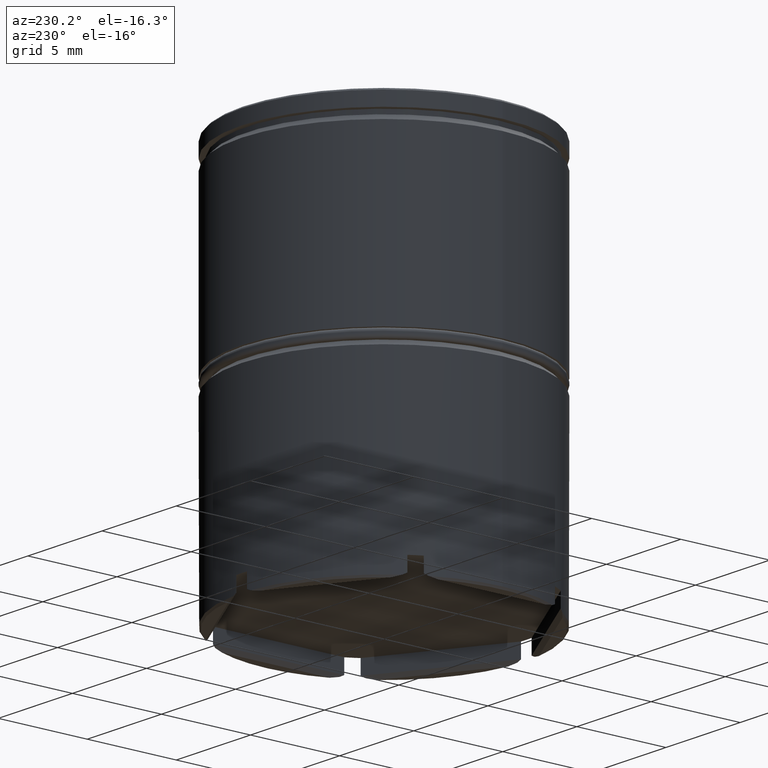
[diagram: clean part render]
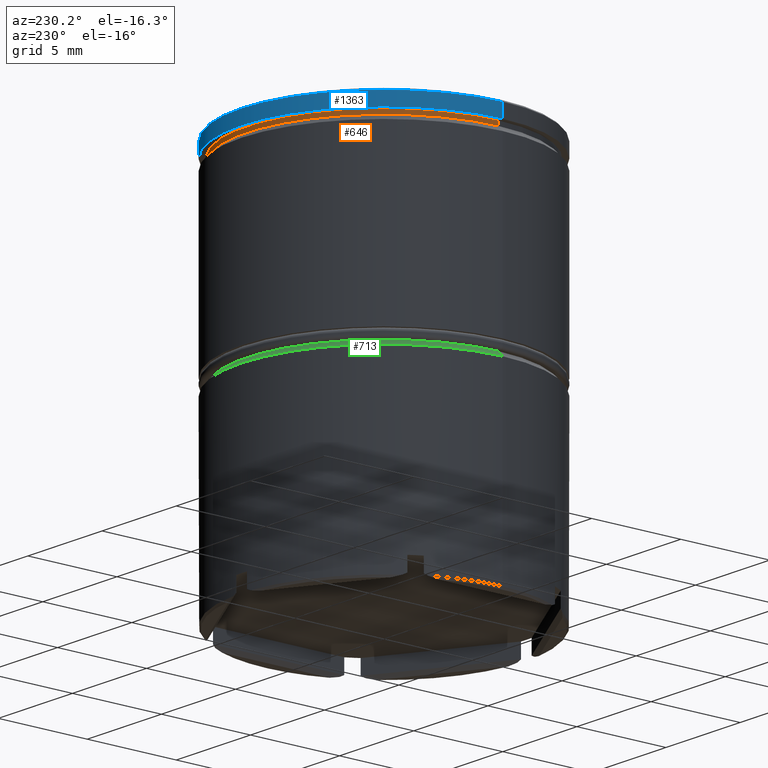
[diagram: same view with three faces highlighted in distinct colors, each labeled with its STEP entity id]
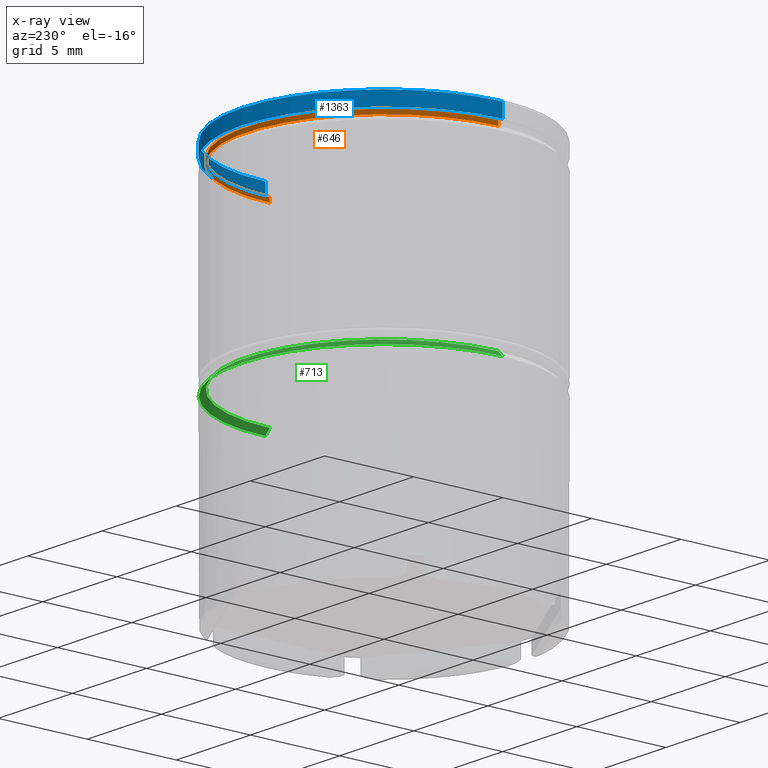
[diagram: x-ray of the same camera — body ghosted, the three highlighted faces saturated]
A machine part, auxiliary view with three faces highlighted in distinct colors.
The next image is the same camera in x-ray (body ghosted, the three faces saturated) — at least one of them is partly hidden behind the body in this view.
Their STEP definitions:

[orange] entity #646 — the highlighted cylindrical surface (partial cylindrical patch) has radius 7.7 mm, axis along (-0, -0, 1).
#66 = CARTESIAN_POINT ( 'NONE',  ( 7.700000000000000178, 0.000000000000000000, 0.000000000000000000 ) ) ;
#85 = LINE ( 'NONE', #66, #102 ) ;
#102 = VECTOR ( 'NONE', #944, 1000.000000000000000 ) ;
#116 = VERTEX_POINT ( 'NONE', #823 ) ;
#260 = VERTEX_POINT ( 'NONE', #353 ) ;
#263 = EDGE_CURVE ( 'NONE', #260, #116, #85, .T. ) ;
#274 = EDGE_CURVE ( 'NONE', #260, #1408, #1022, .T. ) ;
#297 = FACE_OUTER_BOUND ( 'NONE', #1014, .T. ) ;
#313 = DIRECTION ( 'NONE',  ( -0.000000000000000000, -0.000000000000000000, 1.000000000000000000 ) ) ;
#353 = CARTESIAN_POINT ( 'NONE',  ( 7.700000000000000178, 0.000000000000000000, -1.125000000000000222 ) ) ;
#407 = AXIS2_PLACEMENT_3D ( 'NONE', #690, #1199, #564 ) ;
#433 = CARTESIAN_POINT ( 'NONE',  ( 0.000000000000000000, 0.000000000000000000, 0.000000000000000000 ) ) ;
#469 = ORIENTED_EDGE ( 'NONE', *, *, #626, .T. ) ;
#492 = ORIENTED_EDGE ( 'NONE', *, *, #263, .F. ) ;
#564 = DIRECTION ( 'NONE',  ( 1.000000000000000000, 0.000000000000000000, 0.000000000000000000 ) ) ;
#626 = EDGE_CURVE ( 'NONE', #1408, #800, #1081, .T. ) ;
#644 = AXIS2_PLACEMENT_3D ( 'NONE', #855, #962, #1324 ) ;
#646 = ADVANCED_FACE ( 'NONE', ( #297 ), #804, .T. ) ;
#685 = DIRECTION ( 'NONE',  ( -0.000000000000000000, -0.000000000000000000, 1.000000000000000000 ) ) ;
#687 = ORIENTED_EDGE ( 'NONE', *, *, #1032, .F. ) ;
#690 = CARTESIAN_POINT ( 'NONE',  ( 0.000000000000000000, 0.000000000000000000, -0.8749999999999998890 ) ) ;
#731 = CIRCLE ( 'NONE', #407, 7.700000000000000178 ) ;
#800 = VERTEX_POINT ( 'NONE', #1266 ) ;
#804 = CYLINDRICAL_SURFACE ( 'NONE', #838, 7.700000000000000178 ) ;
#823 = CARTESIAN_POINT ( 'NONE',  ( 7.700000000000000178, 0.000000000000000000, -0.8749999999999998890 ) ) ;
#824 = CARTESIAN_POINT ( 'NONE',  ( -7.700000000000000178, 9.429780353434619030E-16, -1.125000000000000222 ) ) ;
#838 = AXIS2_PLACEMENT_3D ( 'NONE', #433, #313, #1308 ) ;
#839 = ORIENTED_EDGE ( 'NONE', *, *, #274, .T. ) ;
#855 = CARTESIAN_POINT ( 'NONE',  ( 0.000000000000000000, 0.000000000000000000, -1.125000000000000222 ) ) ;
#944 = DIRECTION ( 'NONE',  ( -0.000000000000000000, -0.000000000000000000, 1.000000000000000000 ) ) ;
#962 = DIRECTION ( 'NONE',  ( -0.000000000000000000, -0.000000000000000000, 1.000000000000000000 ) ) ;
#1014 = EDGE_LOOP ( 'NONE', ( #839, #469, #687, #492 ) ) ;
#1022 = CIRCLE ( 'NONE', #644, 7.700000000000000178 ) ;
#1032 = EDGE_CURVE ( 'NONE', #116, #800, #731, .T. ) ;
#1081 = LINE ( 'NONE', #1176, #1237 ) ;
#1176 = CARTESIAN_POINT ( 'NONE',  ( -7.700000000000000178, 9.429780353434619030E-16, 0.000000000000000000 ) ) ;
#1199 = DIRECTION ( 'NONE',  ( -0.000000000000000000, -0.000000000000000000, 1.000000000000000000 ) ) ;
#1237 = VECTOR ( 'NONE', #685, 1000.000000000000000 ) ;
#1266 = CARTESIAN_POINT ( 'NONE',  ( -7.700000000000000178, 9.429780353434619030E-16, -0.8749999999999998890 ) ) ;
#1308 = DIRECTION ( 'NONE',  ( 1.000000000000000000, 0.000000000000000000, 0.000000000000000000 ) ) ;
#1324 = DIRECTION ( 'NONE',  ( 1.000000000000000000, 0.000000000000000000, 0.000000000000000000 ) ) ;
#1408 = VERTEX_POINT ( 'NONE', #824 ) ;

[blue] entity #1363 — the highlighted cylindrical surface (partial cylindrical patch) has radius 8 mm, axis along (-0, -0, 1).
#42 = DIRECTION ( 'NONE',  ( 0.000000000000000000, 0.000000000000000000, -1.000000000000000000 ) ) ;
#44 = CARTESIAN_POINT ( 'NONE',  ( -8.000000000000000000, 9.797174393178825657E-16, 0.000000000000000000 ) ) ;
#129 = ORIENTED_EDGE ( 'NONE', *, *, #1345, .T. ) ;
#293 = DIRECTION ( 'NONE',  ( 1.000000000000000000, 0.000000000000000000, 0.000000000000000000 ) ) ;
#327 = CARTESIAN_POINT ( 'NONE',  ( -8.000000000000000000, 9.797174393178825657E-16, -0.8749999999999998890 ) ) ;
#438 = CYLINDRICAL_SURFACE ( 'NONE', #758, 8.000000000000000000 ) ;
#442 = CARTESIAN_POINT ( 'NONE',  ( 8.000000000000000000, 0.000000000000000000, 0.000000000000000000 ) ) ;
#459 = ORIENTED_EDGE ( 'NONE', *, *, #907, .T. ) ;
#514 = VECTOR ( 'NONE', #945, 1000.000000000000000 ) ;
#527 = CARTESIAN_POINT ( 'NONE',  ( 0.000000000000000000, 0.000000000000000000, -0.09999999999999592548 ) ) ;
#535 = LINE ( 'NONE', #44, #514 ) ;
#540 = VECTOR ( 'NONE', #955, 1000.000000000000000 ) ;
#543 = AXIS2_PLACEMENT_3D ( 'NONE', #527, #42, #1058 ) ;
#554 = VERTEX_POINT ( 'NONE', #693 ) ;
#556 = CARTESIAN_POINT ( 'NONE',  ( 0.000000000000000000, 0.000000000000000000, -0.8749999999999998890 ) ) ;
#628 = EDGE_LOOP ( 'NONE', ( #665, #459, #129, #1307 ) ) ;
#665 = ORIENTED_EDGE ( 'NONE', *, *, #930, .T. ) ;
#681 = VERTEX_POINT ( 'NONE', #327 ) ;
#684 = DIRECTION ( 'NONE',  ( 1.000000000000000000, 0.000000000000000000, 0.000000000000000000 ) ) ;
#693 = CARTESIAN_POINT ( 'NONE',  ( 8.000000000000000000, 0.000000000000000000, -0.09999999999999592548 ) ) ;
#758 = AXIS2_PLACEMENT_3D ( 'NONE', #935, #1436, #293 ) ;
#801 = CARTESIAN_POINT ( 'NONE',  ( -8.000000000000000000, 9.797174393178825657E-16, -0.09999999999999592548 ) ) ;
#907 = EDGE_CURVE ( 'NONE', #681, #971, #535, .T. ) ;
#930 = EDGE_CURVE ( 'NONE', #1442, #681, #1316, .T. ) ;
#935 = CARTESIAN_POINT ( 'NONE',  ( 0.000000000000000000, 0.000000000000000000, 0.000000000000000000 ) ) ;
#945 = DIRECTION ( 'NONE',  ( -0.000000000000000000, -0.000000000000000000, 1.000000000000000000 ) ) ;
#955 = DIRECTION ( 'NONE',  ( -0.000000000000000000, -0.000000000000000000, 1.000000000000000000 ) ) ;
#971 = VERTEX_POINT ( 'NONE', #801 ) ;
#1026 = AXIS2_PLACEMENT_3D ( 'NONE', #556, #1456, #684 ) ;
#1039 = EDGE_CURVE ( 'NONE', #1442, #554, #1584, .T. ) ;
#1058 = DIRECTION ( 'NONE',  ( 1.000000000000000000, 0.000000000000000000, 0.000000000000000000 ) ) ;
#1212 = CIRCLE ( 'NONE', #543, 8.000000000000000000 ) ;
#1305 = FACE_OUTER_BOUND ( 'NONE', #628, .T. ) ;
#1307 = ORIENTED_EDGE ( 'NONE', *, *, #1039, .F. ) ;
#1316 = CIRCLE ( 'NONE', #1026, 8.000000000000000000 ) ;
#1345 = EDGE_CURVE ( 'NONE', #971, #554, #1212, .T. ) ;
#1363 = ADVANCED_FACE ( 'NONE', ( #1305 ), #438, .T. ) ;
#1420 = CARTESIAN_POINT ( 'NONE',  ( 8.000000000000000000, 0.000000000000000000, -0.8749999999999998890 ) ) ;
#1436 = DIRECTION ( 'NONE',  ( -0.000000000000000000, -0.000000000000000000, 1.000000000000000000 ) ) ;
#1442 = VERTEX_POINT ( 'NONE', #1420 ) ;
#1456 = DIRECTION ( 'NONE',  ( -0.000000000000000000, -0.000000000000000000, 1.000000000000000000 ) ) ;
#1584 = LINE ( 'NONE', #442, #540 ) ;

[green] entity #713 — the highlighted conical surface has half-angle 45 deg.
#18 = EDGE_LOOP ( 'NONE', ( #523, #377, #1228, #1187 ) ) ;
#81 = FACE_OUTER_BOUND ( 'NONE', #18, .T. ) ;
#94 = CARTESIAN_POINT ( 'NONE',  ( -7.700000000000000178, 9.429780353434619030E-16, -11.25000000000000000 ) ) ;
#104 = VECTOR ( 'NONE', #530, 1000.000000000000000 ) ;
#172 = CARTESIAN_POINT ( 'NONE',  ( 7.700000000000001954, 9.429780353434622974E-16, -11.25000000000000000 ) ) ;
#184 = EDGE_CURVE ( 'NONE', #1116, #423, #695, .T. ) ;
#279 = CIRCLE ( 'NONE', #1259, 8.000000000000000000 ) ;
#377 = ORIENTED_EDGE ( 'NONE', *, *, #566, .T. ) ;
#386 = CARTESIAN_POINT ( 'NONE',  ( 0.000000000000000000, 0.000000000000000000, -11.54999999999999893 ) ) ;
#417 = LINE ( 'NONE', #172, #104 ) ;
#423 = VERTEX_POINT ( 'NONE', #1497 ) ;
#450 = CARTESIAN_POINT ( 'NONE',  ( 0.000000000000000000, 0.000000000000000000, -11.25000000000000000 ) ) ;
#500 = VERTEX_POINT ( 'NONE', #1144 ) ;
#523 = ORIENTED_EDGE ( 'NONE', *, *, #608, .F. ) ;
#530 = DIRECTION ( 'NONE',  ( 0.7071067811865454633, 8.659560562354908206E-17, -0.7071067811865495711 ) ) ;
#533 = EDGE_CURVE ( 'NONE', #423, #500, #279, .T. ) ;
#566 = EDGE_CURVE ( 'NONE', #668, #500, #417, .T. ) ;
#567 = DIRECTION ( 'NONE',  ( -0.000000000000000000, -0.000000000000000000, 1.000000000000000000 ) ) ;
#578 = DIRECTION ( 'NONE',  ( 0.000000000000000000, 0.000000000000000000, -1.000000000000000000 ) ) ;
#608 = EDGE_CURVE ( 'NONE', #668, #1116, #1158, .T. ) ;
#666 = DIRECTION ( 'NONE',  ( 1.000000000000000000, 0.000000000000000000, 0.000000000000000000 ) ) ;
#668 = VERTEX_POINT ( 'NONE', #849 ) ;
#695 = LINE ( 'NONE', #985, #726 ) ;
#702 = AXIS2_PLACEMENT_3D ( 'NONE', #1170, #567, #666 ) ;
#713 = ADVANCED_FACE ( 'NONE', ( #81 ), #1155, .T. ) ;
#726 = VECTOR ( 'NONE', #1487, 1000.000000000000000 ) ;
#849 = CARTESIAN_POINT ( 'NONE',  ( 7.700000000000000178, 0.000000000000000000, -11.25000000000000000 ) ) ;
#904 = DIRECTION ( 'NONE',  ( 1.000000000000000000, 0.000000000000000000, 0.000000000000000000 ) ) ;
#985 = CARTESIAN_POINT ( 'NONE',  ( -7.700000000000001954, 0.000000000000000000, -11.25000000000000000 ) ) ;
#1021 = DIRECTION ( 'NONE',  ( 0.000000000000000000, 0.000000000000000000, -1.000000000000000000 ) ) ;
#1116 = VERTEX_POINT ( 'NONE', #94 ) ;
#1144 = CARTESIAN_POINT ( 'NONE',  ( 8.000000000000000000, 0.000000000000000000, -11.54999999999999893 ) ) ;
#1155 = CONICAL_SURFACE ( 'NONE', #1448, 7.700000000000001954, 0.7853981633974453924 ) ;
#1158 = CIRCLE ( 'NONE', #702, 7.700000000000000178 ) ;
#1170 = CARTESIAN_POINT ( 'NONE',  ( 0.000000000000000000, 0.000000000000000000, -11.25000000000000000 ) ) ;
#1187 = ORIENTED_EDGE ( 'NONE', *, *, #184, .F. ) ;
#1228 = ORIENTED_EDGE ( 'NONE', *, *, #533, .F. ) ;
#1259 = AXIS2_PLACEMENT_3D ( 'NONE', #386, #1021, #904 ) ;
#1448 = AXIS2_PLACEMENT_3D ( 'NONE', #450, #578, #1594 ) ;
#1487 = DIRECTION ( 'NONE',  ( -0.7071067811865454633, 0.000000000000000000, -0.7071067811865495711 ) ) ;
#1497 = CARTESIAN_POINT ( 'NONE',  ( -8.000000000000000000, 9.797174393178825657E-16, -11.54999999999999893 ) ) ;
#1594 = DIRECTION ( 'NONE',  ( -1.000000000000000000, 0.000000000000000000, 0.000000000000000000 ) ) ;